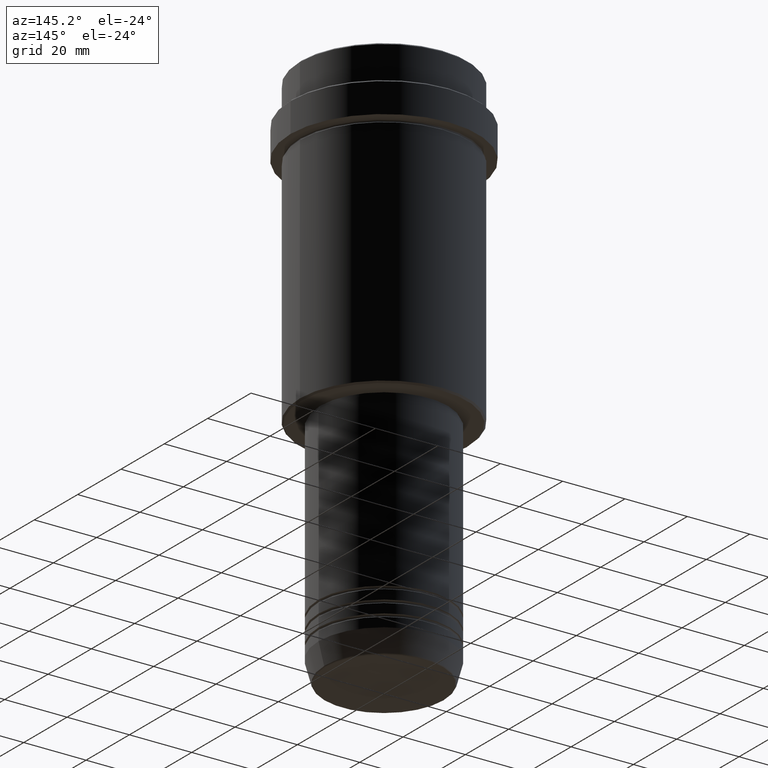
[diagram: clean part render]
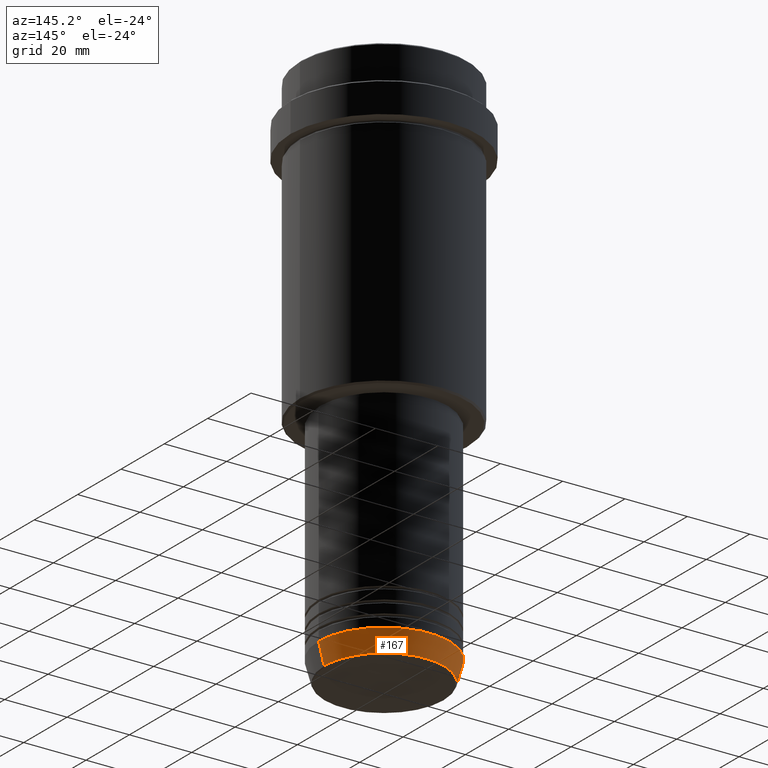
[diagram: same view with one face highlighted and labeled with its STEP entity id]
A machine part, auxiliary view. The second image highlights one B-rep face of the part: STEP entity #167.
In plain terms, the highlighted conical surface has half-angle 15 deg.
Its self-contained STEP definition (entity closure, byte-faithful):
#5 = CARTESIAN_POINT ( 'NONE',  ( -19.22365507213720548, 2.462988521705002233E-15, -172.6294095225512706 ) ) ;
#18 = DIRECTION ( 'NONE',  ( -0.000000000000000000, -0.000000000000000000, 1.000000000000000000 ) ) ;
#26 = EDGE_CURVE ( 'NONE', #941, #1152, #394, .T. ) ;
#29 = AXIS2_PLACEMENT_3D ( 'NONE', #442, #1300, #546 ) ;
#43 = CARTESIAN_POINT ( 'NONE',  ( 0.000000000000000000, 0.000000000000000000, -172.6294095225512706 ) ) ;
#50 = CONICAL_SURFACE ( 'NONE', #29, 21.00000000000000000, 0.2617993877991496299 ) ;
#137 = ORIENTED_EDGE ( 'NONE', *, *, #586, .T. ) ;
#142 = EDGE_CURVE ( 'NONE', #1415, #1101, #430, .T. ) ;
#156 = CIRCLE ( 'NONE', #743, 21.00000000000000000 ) ;
#167 = ADVANCED_FACE ( 'NONE', ( #660 ), #50, .T. ) ;
#201 = AXIS2_PLACEMENT_3D ( 'NONE', #43, #18, #687 ) ;
#211 = DIRECTION ( 'NONE',  ( 0.2588190451025209615, 0.000000000000000000, 0.9659258262890682012 ) ) ;
#317 = DIRECTION ( 'NONE',  ( 1.000000000000000000, 0.000000000000000000, 0.000000000000000000 ) ) ;
#348 = CARTESIAN_POINT ( 'NONE',  ( 21.00000000000000000, 0.000000000000000000, -166.0000000000000000 ) ) ;
#373 = CARTESIAN_POINT ( 'NONE',  ( -21.00000000000000000, 2.571758278209441661E-15, -166.0000000000000000 ) ) ;
#394 = LINE ( 'NONE', #373, #1167 ) ;
#430 = LINE ( 'NONE', #1071, #952 ) ;
#442 = CARTESIAN_POINT ( 'NONE',  ( 0.000000000000000000, 0.000000000000000000, -166.0000000000000000 ) ) ;
#546 = DIRECTION ( 'NONE',  ( 1.000000000000000000, 0.000000000000000000, 0.000000000000000000 ) ) ;
#586 = EDGE_CURVE ( 'NONE', #1415, #941, #936, .T. ) ;
#622 = DIRECTION ( 'NONE',  ( -0.2588190451025209615, 3.169619151431767406E-17, 0.9659258262890682012 ) ) ;
#624 = EDGE_LOOP ( 'NONE', ( #137, #923, #1200, #975 ) ) ;
#660 = FACE_OUTER_BOUND ( 'NONE', #624, .T. ) ;
#687 = DIRECTION ( 'NONE',  ( 1.000000000000000000, 0.000000000000000000, 0.000000000000000000 ) ) ;
#743 = AXIS2_PLACEMENT_3D ( 'NONE', #1260, #775, #317 ) ;
#775 = DIRECTION ( 'NONE',  ( -0.000000000000000000, -0.000000000000000000, 1.000000000000000000 ) ) ;
#923 = ORIENTED_EDGE ( 'NONE', *, *, #26, .T. ) ;
#936 = CIRCLE ( 'NONE', #201, 19.22365507213720548 ) ;
#941 = VERTEX_POINT ( 'NONE', #5 ) ;
#952 = VECTOR ( 'NONE', #211, 1000.000000000000000 ) ;
#975 = ORIENTED_EDGE ( 'NONE', *, *, #142, .F. ) ;
#1071 = CARTESIAN_POINT ( 'NONE',  ( 21.00000000000000000, 0.000000000000000000, -166.0000000000000000 ) ) ;
#1101 = VERTEX_POINT ( 'NONE', #348 ) ;
#1152 = VERTEX_POINT ( 'NONE', #1407 ) ;
#1167 = VECTOR ( 'NONE', #622, 1000.000000000000000 ) ;
#1200 = ORIENTED_EDGE ( 'NONE', *, *, #1328, .F. ) ;
#1260 = CARTESIAN_POINT ( 'NONE',  ( 0.000000000000000000, 0.000000000000000000, -166.0000000000000000 ) ) ;
#1300 = DIRECTION ( 'NONE',  ( -0.000000000000000000, -0.000000000000000000, 1.000000000000000000 ) ) ;
#1328 = EDGE_CURVE ( 'NONE', #1101, #1152, #156, .T. ) ;
#1380 = CARTESIAN_POINT ( 'NONE',  ( 19.22365507213720548, 0.000000000000000000, -172.6294095225512706 ) ) ;
#1407 = CARTESIAN_POINT ( 'NONE',  ( -21.00000000000000000, 2.571758278209441661E-15, -166.0000000000000000 ) ) ;
#1415 = VERTEX_POINT ( 'NONE', #1380 ) ;